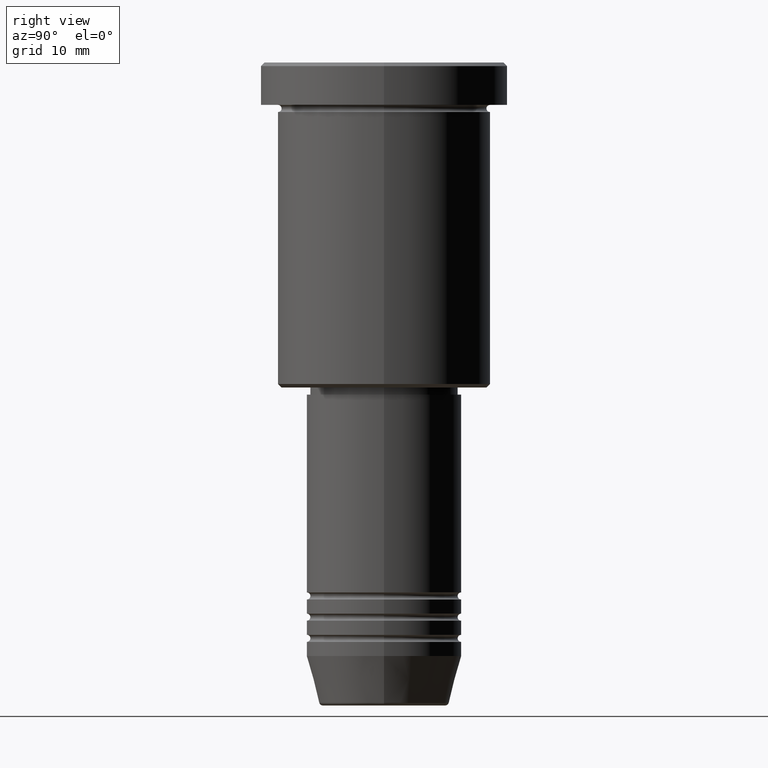
[diagram: clean part render]
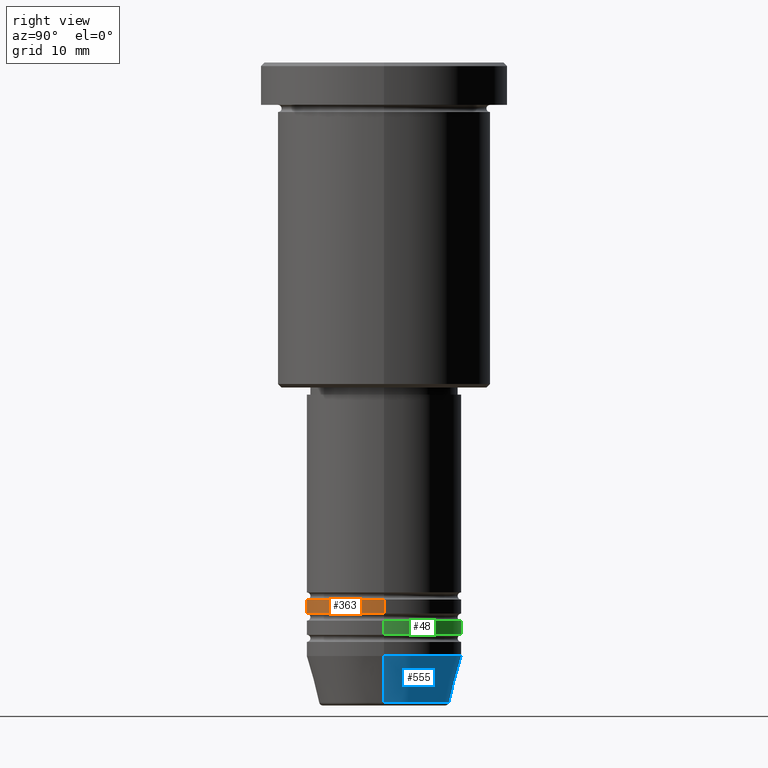
[diagram: same view with three faces highlighted in distinct colors, each labeled with its STEP entity id]
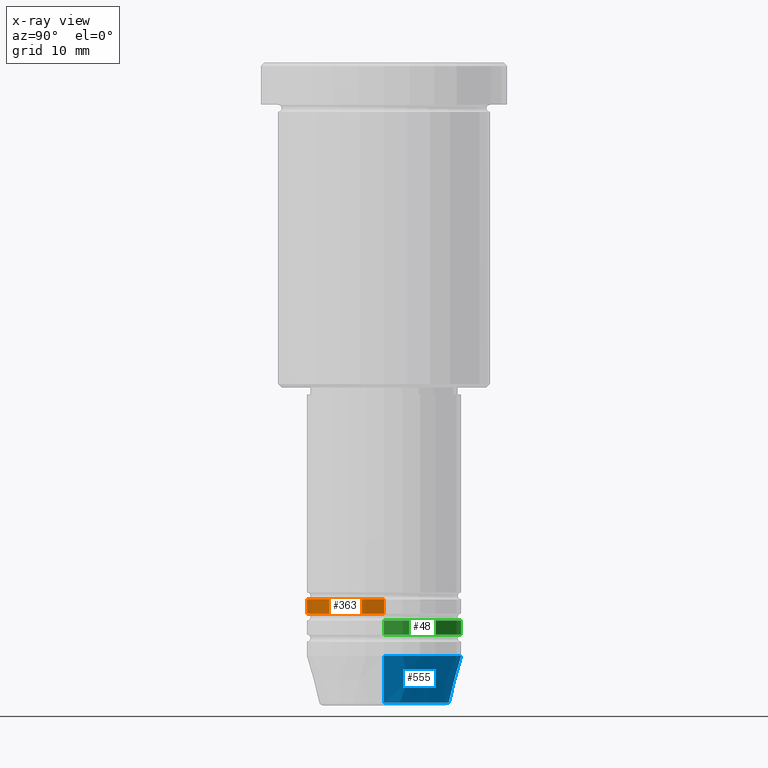
[diagram: x-ray of the same camera — body ghosted, the three highlighted faces saturated]
A machine part, right view with three faces highlighted in distinct colors.
The next image is the same camera in x-ray (body ghosted, the three faces saturated) — at least one of them is partly hidden behind the body in this view.
Their STEP definitions:

[orange] entity #363 — the highlighted cylindrical surface (partial cylindrical patch) has radius 11 mm, axis along (-0, -0, 1).
#34 = ORIENTED_EDGE ( 'NONE', *, *, #685, .T. ) ;
#59 = CARTESIAN_POINT ( 'NONE',  ( 0.000000000000000000, 0.000000000000000000, 0.000000000000000000 ) ) ;
#63 = AXIS2_PLACEMENT_3D ( 'NONE', #669, #1029, #937 ) ;
#75 = EDGE_CURVE ( 'NONE', #432, #1046, #87, .T. ) ;
#81 = AXIS2_PLACEMENT_3D ( 'NONE', #59, #619, #903 ) ;
#83 = VECTOR ( 'NONE', #752, 1000.000000000000000 ) ;
#87 = LINE ( 'NONE', #712, #103 ) ;
#96 = CARTESIAN_POINT ( 'NONE',  ( 11.00000000000000000, 0.000000000000000000, 0.000000000000000000 ) ) ;
#103 = VECTOR ( 'NONE', #369, 1000.000000000000000 ) ;
#147 = CARTESIAN_POINT ( 'NONE',  ( 11.00000000000000000, 0.000000000000000000, -77.99999999999997158 ) ) ;
#289 = CIRCLE ( 'NONE', #1154, 11.00000000000000000 ) ;
#346 = EDGE_LOOP ( 'NONE', ( #1082, #34, #610, #1130 ) ) ;
#363 = ADVANCED_FACE ( 'NONE', ( #731 ), #1151, .T. ) ;
#369 = DIRECTION ( 'NONE',  ( -0.000000000000000000, -0.000000000000000000, 1.000000000000000000 ) ) ;
#386 = VERTEX_POINT ( 'NONE', #147 ) ;
#419 = VERTEX_POINT ( 'NONE', #829 ) ;
#432 = VERTEX_POINT ( 'NONE', #661 ) ;
#458 = LINE ( 'NONE', #96, #83 ) ;
#556 = CARTESIAN_POINT ( 'NONE',  ( 0.000000000000000000, 0.000000000000000000, -75.99999999999997158 ) ) ;
#610 = ORIENTED_EDGE ( 'NONE', *, *, #938, .T. ) ;
#619 = DIRECTION ( 'NONE',  ( -0.000000000000000000, -0.000000000000000000, 1.000000000000000000 ) ) ;
#661 = CARTESIAN_POINT ( 'NONE',  ( -11.00000000000000000, 1.347111479062088405E-15, -77.99999999999997158 ) ) ;
#669 = CARTESIAN_POINT ( 'NONE',  ( 0.000000000000000000, 0.000000000000000000, -77.99999999999997158 ) ) ;
#685 = EDGE_CURVE ( 'NONE', #432, #386, #762, .T. ) ;
#712 = CARTESIAN_POINT ( 'NONE',  ( -11.00000000000000000, 1.347111479062088405E-15, 0.000000000000000000 ) ) ;
#731 = FACE_OUTER_BOUND ( 'NONE', #346, .T. ) ;
#752 = DIRECTION ( 'NONE',  ( -0.000000000000000000, -0.000000000000000000, 1.000000000000000000 ) ) ;
#762 = CIRCLE ( 'NONE', #63, 11.00000000000000000 ) ;
#829 = CARTESIAN_POINT ( 'NONE',  ( 11.00000000000000000, 0.000000000000000000, -75.99999999999997158 ) ) ;
#903 = DIRECTION ( 'NONE',  ( 1.000000000000000000, 0.000000000000000000, 0.000000000000000000 ) ) ;
#932 = CARTESIAN_POINT ( 'NONE',  ( -11.00000000000000000, 1.347111479062088405E-15, -75.99999999999997158 ) ) ;
#937 = DIRECTION ( 'NONE',  ( 1.000000000000000000, 0.000000000000000000, 0.000000000000000000 ) ) ;
#938 = EDGE_CURVE ( 'NONE', #386, #419, #458, .T. ) ;
#945 = EDGE_CURVE ( 'NONE', #1046, #419, #289, .T. ) ;
#1006 = DIRECTION ( 'NONE',  ( -0.000000000000000000, -0.000000000000000000, 1.000000000000000000 ) ) ;
#1029 = DIRECTION ( 'NONE',  ( -0.000000000000000000, -0.000000000000000000, 1.000000000000000000 ) ) ;
#1046 = VERTEX_POINT ( 'NONE', #932 ) ;
#1082 = ORIENTED_EDGE ( 'NONE', *, *, #75, .F. ) ;
#1091 = DIRECTION ( 'NONE',  ( 1.000000000000000000, 0.000000000000000000, 0.000000000000000000 ) ) ;
#1130 = ORIENTED_EDGE ( 'NONE', *, *, #945, .F. ) ;
#1151 = CYLINDRICAL_SURFACE ( 'NONE', #81, 11.00000000000000000 ) ;
#1154 = AXIS2_PLACEMENT_3D ( 'NONE', #556, #1006, #1091 ) ;

[blue] entity #555 — the highlighted conical surface has half-angle 15 deg.
#14 = DIRECTION ( 'NONE',  ( 1.000000000000000000, 0.000000000000000000, 0.000000000000000000 ) ) ;
#17 = DIRECTION ( 'NONE',  ( 1.000000000000000000, 0.000000000000000000, 0.000000000000000000 ) ) ;
#82 = CIRCLE ( 'NONE', #391, 9.223655072137187716 ) ;
#97 = DIRECTION ( 'NONE',  ( -0.000000000000000000, -0.000000000000000000, 1.000000000000000000 ) ) ;
#167 = ORIENTED_EDGE ( 'NONE', *, *, #977, .F. ) ;
#198 = DIRECTION ( 'NONE',  ( -0.000000000000000000, -0.000000000000000000, 1.000000000000000000 ) ) ;
#240 = CARTESIAN_POINT ( 'NONE',  ( -9.223655072137187716, 1.238341722557647004E-15, -90.62940952255124216 ) ) ;
#356 = CONICAL_SURFACE ( 'NONE', #851, 11.00000000000000000, 0.2617993877991500740 ) ;
#372 = LINE ( 'NONE', #472, #389 ) ;
#373 = ORIENTED_EDGE ( 'NONE', *, *, #481, .T. ) ;
#385 = DIRECTION ( 'NONE',  ( 1.000000000000000000, 0.000000000000000000, 0.000000000000000000 ) ) ;
#389 = VECTOR ( 'NONE', #839, 1000.000000000000000 ) ;
#391 = AXIS2_PLACEMENT_3D ( 'NONE', #1014, #97, #17 ) ;
#434 = EDGE_CURVE ( 'NONE', #806, #815, #507, .T. ) ;
#435 = CARTESIAN_POINT ( 'NONE',  ( 9.223655072137187716, 0.000000000000000000, -90.62940952255124216 ) ) ;
#439 = CARTESIAN_POINT ( 'NONE',  ( -11.00000000000000000, 1.347111479062088405E-15, -83.99999999999998579 ) ) ;
#445 = CARTESIAN_POINT ( 'NONE',  ( 11.00000000000000000, 0.000000000000000000, -83.99999999999998579 ) ) ;
#472 = CARTESIAN_POINT ( 'NONE',  ( -11.00000000000000000, 1.347111479062088405E-15, -83.99999999999998579 ) ) ;
#475 = FACE_OUTER_BOUND ( 'NONE', #814, .T. ) ;
#481 = EDGE_CURVE ( 'NONE', #790, #815, #372, .T. ) ;
#507 = CIRCLE ( 'NONE', #662, 11.00000000000000000 ) ;
#555 = ADVANCED_FACE ( 'NONE', ( #475 ), #356, .T. ) ;
#563 = EDGE_CURVE ( 'NONE', #786, #790, #82, .T. ) ;
#613 = ORIENTED_EDGE ( 'NONE', *, *, #563, .T. ) ;
#657 = LINE ( 'NONE', #445, #803 ) ;
#662 = AXIS2_PLACEMENT_3D ( 'NONE', #1002, #198, #14 ) ;
#743 = DIRECTION ( 'NONE',  ( -0.000000000000000000, -0.000000000000000000, 1.000000000000000000 ) ) ;
#786 = VERTEX_POINT ( 'NONE', #435 ) ;
#790 = VERTEX_POINT ( 'NONE', #240 ) ;
#803 = VECTOR ( 'NONE', #1177, 1000.000000000000000 ) ;
#806 = VERTEX_POINT ( 'NONE', #901 ) ;
#814 = EDGE_LOOP ( 'NONE', ( #613, #373, #940, #167 ) ) ;
#815 = VERTEX_POINT ( 'NONE', #439 ) ;
#839 = DIRECTION ( 'NONE',  ( -0.2588190451025213501, 3.169619151431772337E-17, 0.9659258262890680902 ) ) ;
#844 = CARTESIAN_POINT ( 'NONE',  ( 0.000000000000000000, 0.000000000000000000, -83.99999999999998579 ) ) ;
#851 = AXIS2_PLACEMENT_3D ( 'NONE', #844, #743, #385 ) ;
#901 = CARTESIAN_POINT ( 'NONE',  ( 11.00000000000000000, 0.000000000000000000, -83.99999999999998579 ) ) ;
#940 = ORIENTED_EDGE ( 'NONE', *, *, #434, .F. ) ;
#977 = EDGE_CURVE ( 'NONE', #786, #806, #657, .T. ) ;
#1002 = CARTESIAN_POINT ( 'NONE',  ( 0.000000000000000000, 0.000000000000000000, -83.99999999999998579 ) ) ;
#1014 = CARTESIAN_POINT ( 'NONE',  ( 0.000000000000000000, 0.000000000000000000, -90.62940952255124216 ) ) ;
#1177 = DIRECTION ( 'NONE',  ( 0.2588190451025213501, 0.000000000000000000, 0.9659258262890680902 ) ) ;

[green] entity #48 — the highlighted cylindrical surface (partial cylindrical patch) has radius 11 mm, axis along (-0, -0, 1).
#36 = DIRECTION ( 'NONE',  ( -0.000000000000000000, -0.000000000000000000, 1.000000000000000000 ) ) ;
#37 = LINE ( 'NONE', #1025, #930 ) ;
#48 = ADVANCED_FACE ( 'NONE', ( #334 ), #866, .T. ) ;
#56 = VERTEX_POINT ( 'NONE', #909 ) ;
#62 = CARTESIAN_POINT ( 'NONE',  ( 0.000000000000000000, 0.000000000000000000, 0.000000000000000000 ) ) ;
#151 = CARTESIAN_POINT ( 'NONE',  ( 11.00000000000000000, 0.000000000000000000, -80.99999999999997158 ) ) ;
#194 = AXIS2_PLACEMENT_3D ( 'NONE', #361, #337, #248 ) ;
#209 = VECTOR ( 'NONE', #585, 1000.000000000000000 ) ;
#248 = DIRECTION ( 'NONE',  ( 1.000000000000000000, 0.000000000000000000, 0.000000000000000000 ) ) ;
#261 = ORIENTED_EDGE ( 'NONE', *, *, #574, .T. ) ;
#291 = CARTESIAN_POINT ( 'NONE',  ( 0.000000000000000000, 0.000000000000000000, -80.99999999999997158 ) ) ;
#334 = FACE_OUTER_BOUND ( 'NONE', #1141, .T. ) ;
#337 = DIRECTION ( 'NONE',  ( -0.000000000000000000, -0.000000000000000000, 1.000000000000000000 ) ) ;
#343 = VERTEX_POINT ( 'NONE', #1179 ) ;
#347 = EDGE_CURVE ( 'NONE', #343, #882, #985, .T. ) ;
#361 = CARTESIAN_POINT ( 'NONE',  ( 0.000000000000000000, 0.000000000000000000, -78.99999999999997158 ) ) ;
#396 = CARTESIAN_POINT ( 'NONE',  ( -11.00000000000000000, 1.347111479062088405E-15, 0.000000000000000000 ) ) ;
#399 = ORIENTED_EDGE ( 'NONE', *, *, #620, .T. ) ;
#409 = LINE ( 'NONE', #396, #209 ) ;
#480 = DIRECTION ( 'NONE',  ( 1.000000000000000000, 0.000000000000000000, 0.000000000000000000 ) ) ;
#574 = EDGE_CURVE ( 'NONE', #1157, #56, #913, .T. ) ;
#585 = DIRECTION ( 'NONE',  ( -0.000000000000000000, -0.000000000000000000, 1.000000000000000000 ) ) ;
#620 = EDGE_CURVE ( 'NONE', #56, #882, #409, .T. ) ;
#759 = DIRECTION ( 'NONE',  ( -0.000000000000000000, -0.000000000000000000, 1.000000000000000000 ) ) ;
#795 = ORIENTED_EDGE ( 'NONE', *, *, #1085, .F. ) ;
#866 = CYLINDRICAL_SURFACE ( 'NONE', #917, 11.00000000000000000 ) ;
#882 = VERTEX_POINT ( 'NONE', #1013 ) ;
#888 = DIRECTION ( 'NONE',  ( 1.000000000000000000, 0.000000000000000000, 0.000000000000000000 ) ) ;
#909 = CARTESIAN_POINT ( 'NONE',  ( -11.00000000000000000, 1.347111479062088405E-15, -80.99999999999997158 ) ) ;
#913 = CIRCLE ( 'NONE', #1007, 11.00000000000000000 ) ;
#917 = AXIS2_PLACEMENT_3D ( 'NONE', #62, #36, #888 ) ;
#930 = VECTOR ( 'NONE', #1126, 1000.000000000000000 ) ;
#985 = CIRCLE ( 'NONE', #194, 11.00000000000000000 ) ;
#1007 = AXIS2_PLACEMENT_3D ( 'NONE', #291, #759, #480 ) ;
#1013 = CARTESIAN_POINT ( 'NONE',  ( -11.00000000000000000, 1.347111479062088405E-15, -78.99999999999997158 ) ) ;
#1025 = CARTESIAN_POINT ( 'NONE',  ( 11.00000000000000000, 0.000000000000000000, 0.000000000000000000 ) ) ;
#1065 = ORIENTED_EDGE ( 'NONE', *, *, #347, .F. ) ;
#1085 = EDGE_CURVE ( 'NONE', #1157, #343, #37, .T. ) ;
#1126 = DIRECTION ( 'NONE',  ( -0.000000000000000000, -0.000000000000000000, 1.000000000000000000 ) ) ;
#1141 = EDGE_LOOP ( 'NONE', ( #261, #399, #1065, #795 ) ) ;
#1157 = VERTEX_POINT ( 'NONE', #151 ) ;
#1179 = CARTESIAN_POINT ( 'NONE',  ( 11.00000000000000000, 0.000000000000000000, -78.99999999999997158 ) ) ;